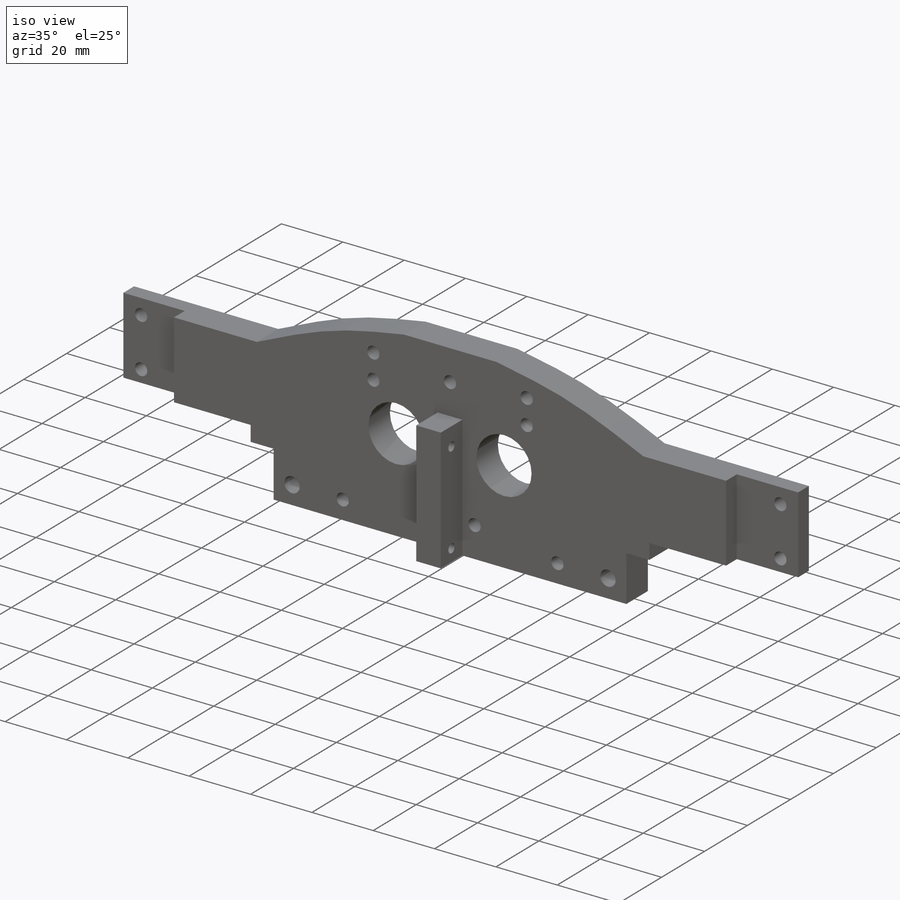
[diagram: iso view]
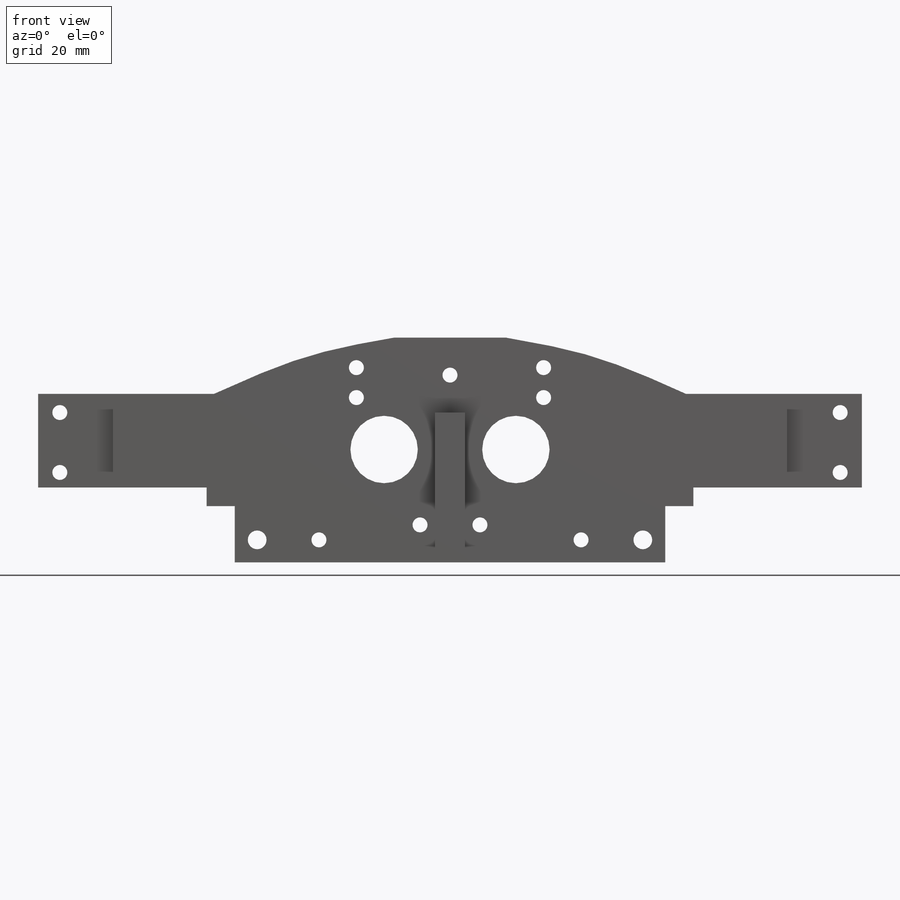
[diagram: front view]
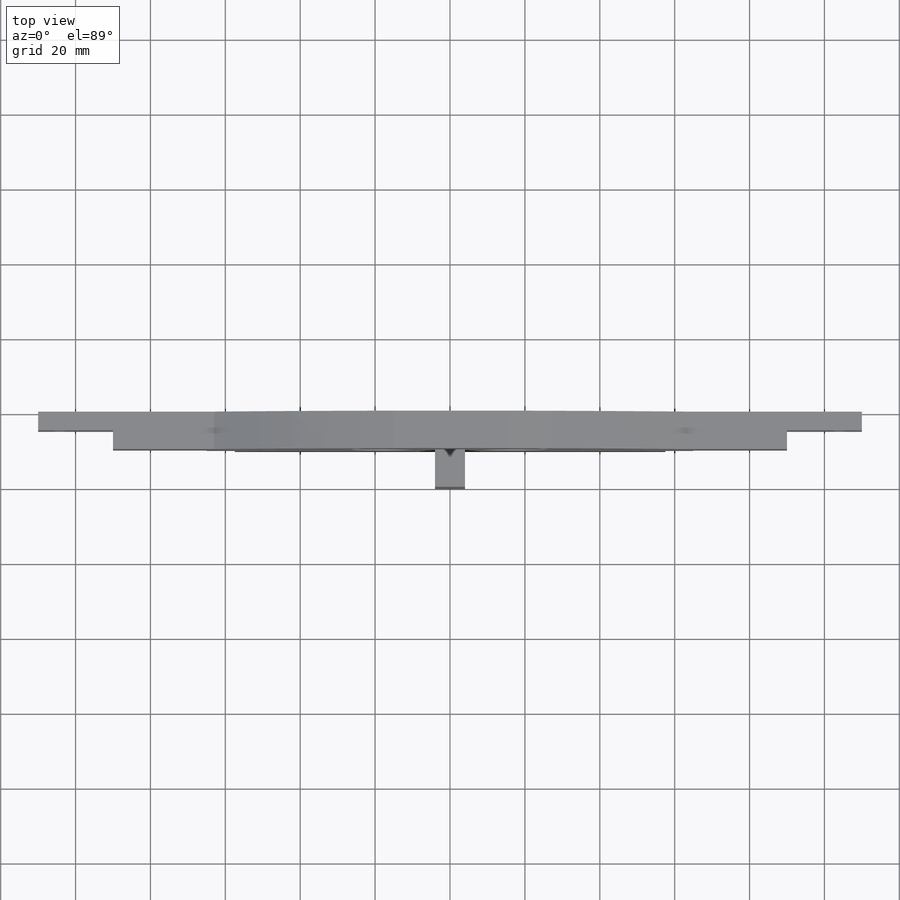
[diagram: top view]
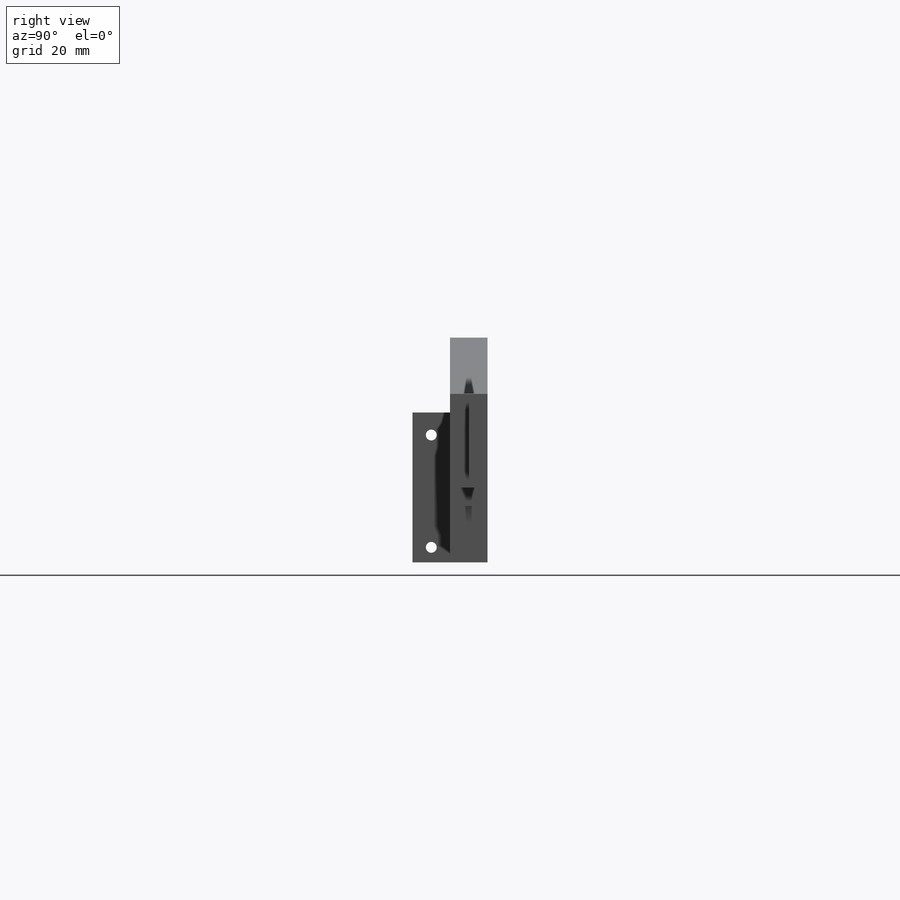
[diagram: right view]
SOLIDWORKS PART (.sldprt)
format: sldprt  version: not decoded by parser v0  size: 471,040 bytes
history: native  units: mm
features: sketch x18, hole x6, extrude x4, mirror x3, cut_extrude x2, material x1 (+14 scaffold rows collapsed)
feature tree (48):
  scaffold x14  (default folders/planes/origin — collapsed)
  material  "PLA Black"
  sketch  "Sketch1"  dims[D1=130.0mm D2=30.0mm D3=2.0mm D4=45.0mm D5=30.0mm D6=20.0mm]
  extrude  "Extrude1"  Depth=10mm
  sketch  "Sketch2"  dims[D1=15.0mm D2=115.0mm]
  extrude  "Extrude2"  [1 undecoded]
  hole  "Ø4.0 (4) Diameter Hole1"  Diameter=4mm Depth=15mm
  sketch  "3DSketch1"  dims[D1=6.0mm D2=70.0mm]
  sketch  "Sketch3"  dims[hole-wizard template sketch: 50 standard entries collapsed; hole parameters above]
  sketch  "Sketch4"  dims[D1=40.0mm D2=8.0mm]
  extrude  "Extrude3"  Depth=10mm
  hole  "Ø4.0 (4) Diameter Hole3"  Diameter=4mm Depth=15mm
  sketch  "3DSketch3"  dims[D1=25.0mm D2=8.0mm D3=25.0mm D4=8.0mm]
  sketch  "Sketch7"  dims[hole-wizard template sketch: 50 standard entries collapsed; hole parameters above]
  hole  "Ø5.0 (5) Diameter Hole1"  Diameter=5mm Depth=15mm
  sketch  "3DSketch4"  dims[D1=6.0mm D2=51.5mm]
  sketch  "Sketch8"  dims[hole-wizard template sketch: 47 standard entries collapsed; hole parameters kept: c15.Hole Depth=15.0mm c15.D3=~14.816244mm c15.Drill Angle=180.0deg]
  hole  "Ø4.0 (4) Diameter Hole5"  Diameter=4mm Depth=15mm
  sketch  "3DSketch5"  dims[c1.D1=10.0mm c1.D2=10.0mm c1.D3=8.0mm c1.D4=8.0mm c1.D5=~40.792156mm c1.D6=~40.792156mm c2.D5=40.0mm]
  sketch  "Sketch9"  dims[hole-wizard template sketch: 50 standard entries collapsed; hole parameters above]
  mirror  "Mirror2"
  hole  "Ø2.9 (2.9) Diameter Hole1"  Diameter=2.9mm Depth=10mm
  sketch  "3DSketch6"  dims[D1=30.0mm D2=4.0mm]
  sketch  "Sketch10"  dims[hole-wizard template sketch: 50 standard entries collapsed; hole parameters above]
  sketch  "Sketch11"  dims[D1=18.0mm]
  cut_extrude  "Extrude5"  Depth=10mm
  mirror  "Mirror3"
  sketch  "Sketch12"  dims[D1=45.0mm D2=25.0mm]
  extrude  "Extrude6"  [1 undecoded]
  sketch  "Sketch14"  dims[D1=20.0mm]
  cut_extrude  "Extrude8"  Depth=5mm
  hole  "Ø4.0 (4) Diameter Hole6"  Diameter=4mm Depth=15mm
  sketch  "3DSketch7"  dims[D1=16.0mm D2=5.8mm D3=5.0mm]
  sketch  "Sketch15"  dims[hole-wizard template sketch: 50 standard entries collapsed; hole parameters above]
  mirror  "Mirror5"
decode coverage: 28 of 33 modeling features carry decoded parameters
note: ~ marks probable driven/reference dimensions
note: 2 parameter values undecoded
summary: Diameter pulled from absorbed wizard sketch
note: suppression state not decoded; provenance and decode notes live in map.json
